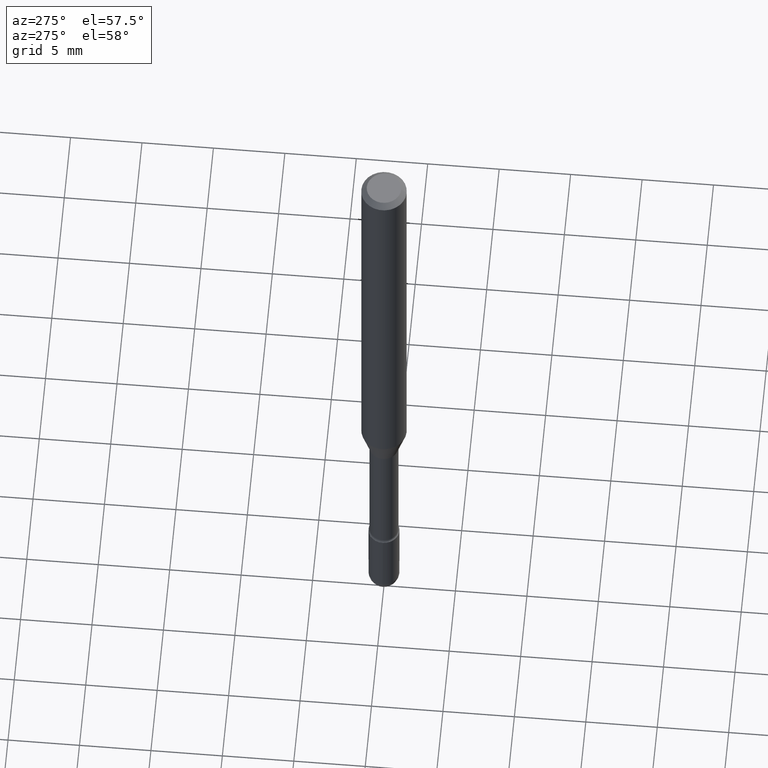
[diagram: clean part render]
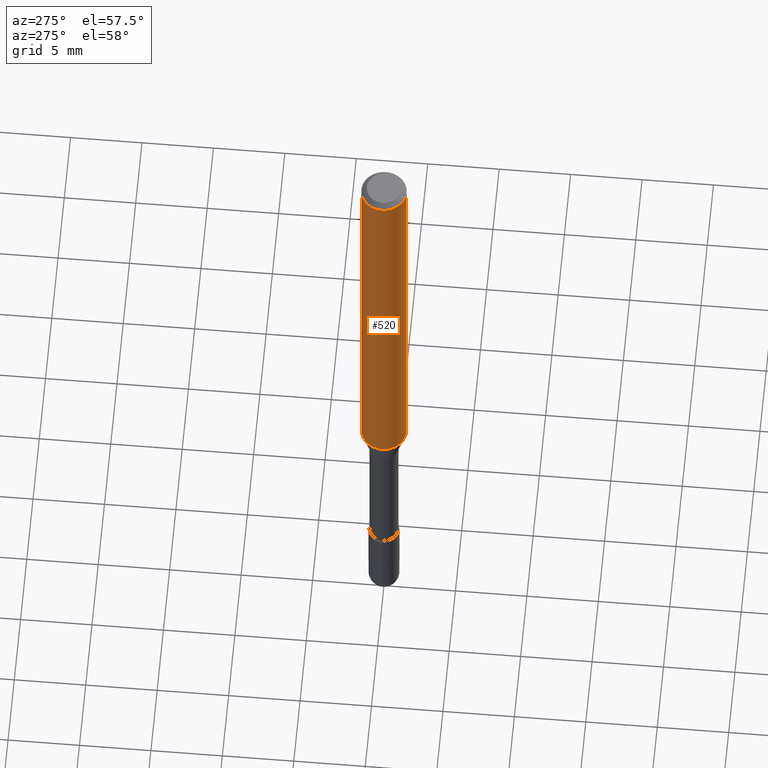
[diagram: same view with one face highlighted and labeled with its STEP entity id]
A machine part, auxiliary view. The second image highlights one B-rep face of the part: STEP entity #520.
In plain terms, the highlighted cylindrical surface (edge-blend (fillet) strip) has radius 1.5875 mm, axis along (-0, 0, 1).
Its self-contained STEP definition (entity closure, byte-faithful):
#9 = CARTESIAN_POINT ( 'NONE',  ( 4.440892098500625669E-16, 0.06250000000000000000, 2.598570044891592103E-16 ) ) ;
#14 = DIRECTION ( 'NONE',  ( -2.445482093652650553E-29, 3.491462310433390042E-15, 1.000000000000000000 ) ) ;
#55 = LINE ( 'NONE', #9, #373 ) ;
#59 = CARTESIAN_POINT ( 'NONE',  ( -1.169113584055446105E-44, 1.669184350826100908E-30, 4.780733988912460139E-16 ) ) ;
#102 = EDGE_CURVE ( 'NONE', #143, #264, #55, .T. ) ;
#105 = DIRECTION ( 'NONE',  ( -6.982962677686265922E-15, -1.000000000000000000, 3.491462310433390436E-15 ) ) ;
#136 = CARTESIAN_POINT ( 'NONE',  ( -4.364351673553912750E-16, -0.06250000000000005551, -0.01499999999999986587 ) ) ;
#143 = VERTEX_POINT ( 'NONE', #282 ) ;
#149 = DIRECTION ( 'NONE',  ( -2.445482093652650834E-29, 3.491462310433390042E-15, 1.000000000000000000 ) ) ;
#156 = AXIS2_PLACEMENT_3D ( 'NONE', #405, #539, #199 ) ;
#168 = AXIS2_PLACEMENT_3D ( 'NONE', #59, #14, #105 ) ;
#182 = CYLINDRICAL_SURFACE ( 'NONE', #168, 0.06250000000000000000 ) ;
#198 = EDGE_CURVE ( 'NONE', #264, #549, #363, .T. ) ;
#199 = DIRECTION ( 'NONE',  ( -6.982962677686265922E-15, -1.000000000000000000, 4.370956789862821150E-15 ) ) ;
#210 = ORIENTED_EDGE ( 'NONE', *, *, #362, .T. ) ;
#242 = VERTEX_POINT ( 'NONE', #330 ) ;
#253 = ORIENTED_EDGE ( 'NONE', *, *, #198, .F. ) ;
#264 = VERTEX_POINT ( 'NONE', #497 ) ;
#280 = ORIENTED_EDGE ( 'NONE', *, *, #443, .T. ) ;
#282 = CARTESIAN_POINT ( 'NONE',  ( 4.440892098500929873E-16, 0.06249999999999572564, -1.235842254289322373 ) ) ;
#293 = ORIENTED_EDGE ( 'NONE', *, *, #102, .F. ) ;
#330 = CARTESIAN_POINT ( 'NONE',  ( -4.364351673553611504E-16, -0.06250000000000427436, -1.235842254289321929 ) ) ;
#332 = DIRECTION ( 'NONE',  ( -2.445482093652650553E-29, 3.491462310433390042E-15, 1.000000000000000000 ) ) ;
#334 = DIRECTION ( 'NONE',  ( -6.982962677686265922E-15, -1.000000000000000000, 3.483106191921935554E-15 ) ) ;
#346 = AXIS2_PLACEMENT_3D ( 'NONE', #375, #332, #334 ) ;
#349 = CIRCLE ( 'NONE', #156, 0.06250000000000000000 ) ;
#352 = EDGE_LOOP ( 'NONE', ( #293, #280, #210, #253 ) ) ;
#362 = EDGE_CURVE ( 'NONE', #242, #549, #507, .T. ) ;
#363 = CIRCLE ( 'NONE', #346, 0.06250000000000000000 ) ;
#373 = VECTOR ( 'NONE', #149, 39.37007874015748143 ) ;
#375 = CARTESIAN_POINT ( 'NONE',  ( 3.668223140478995781E-31, -5.237193465650114152E-17, -0.01500000000000008271 ) ) ;
#405 = CARTESIAN_POINT ( 'NONE',  ( 3.022230103443863054E-29, -4.314896652492206227E-15, -1.235842254289322151 ) ) ;
#410 = FACE_OUTER_BOUND ( 'NONE', #352, .T. ) ;
#431 = CARTESIAN_POINT ( 'NONE',  ( -4.364351673553916201E-16, -0.06250000000000000000, 6.962897932933330148E-16 ) ) ;
#443 = EDGE_CURVE ( 'NONE', #143, #242, #349, .T. ) ;
#497 = CARTESIAN_POINT ( 'NONE',  ( 4.440892098500929873E-16, 0.06249999999999995143, -0.01500000000000030129 ) ) ;
#507 = LINE ( 'NONE', #431, #534 ) ;
#520 = ADVANCED_FACE ( 'NONE', ( #410 ), #182, .T. ) ;
#534 = VECTOR ( 'NONE', #548, 39.37007874015748143 ) ;
#539 = DIRECTION ( 'NONE',  ( -2.445482093652650553E-29, 3.491462310433390042E-15, 1.000000000000000000 ) ) ;
#548 = DIRECTION ( 'NONE',  ( -2.445482093652650834E-29, 3.491462310433390042E-15, 1.000000000000000000 ) ) ;
#549 = VERTEX_POINT ( 'NONE', #136 ) ;